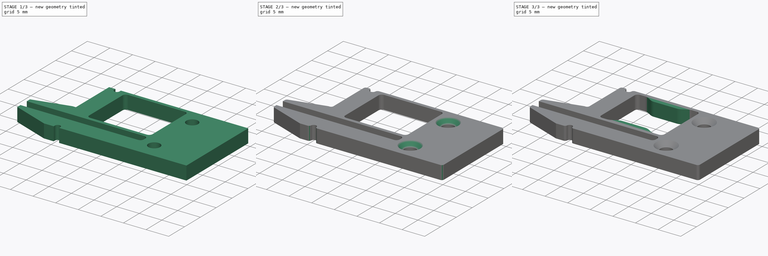
[diagram: build sequence overview — one tinted view per stage of 3, left to right]
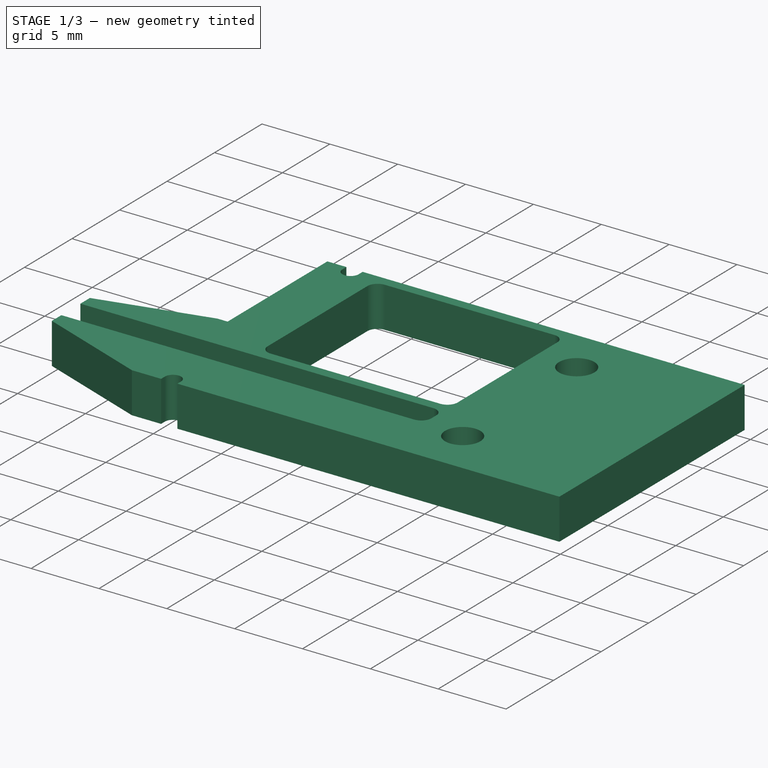
[diagram: stage 1 of 3 — iso view after this stage's code; geometry added in this stage tinted green]
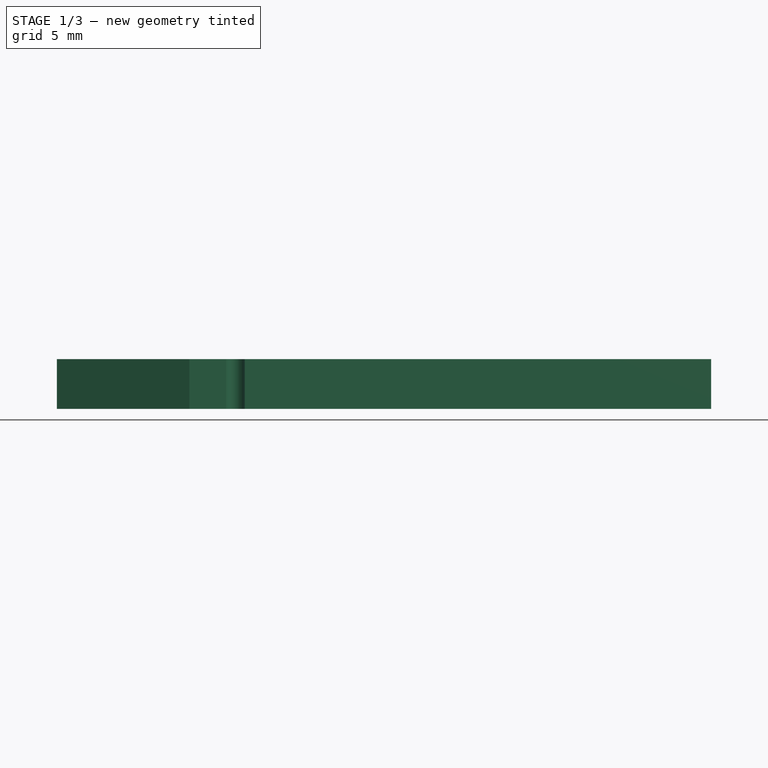
[diagram: stage 1 of 3 — front view after this stage's code; geometry added in this stage tinted green]
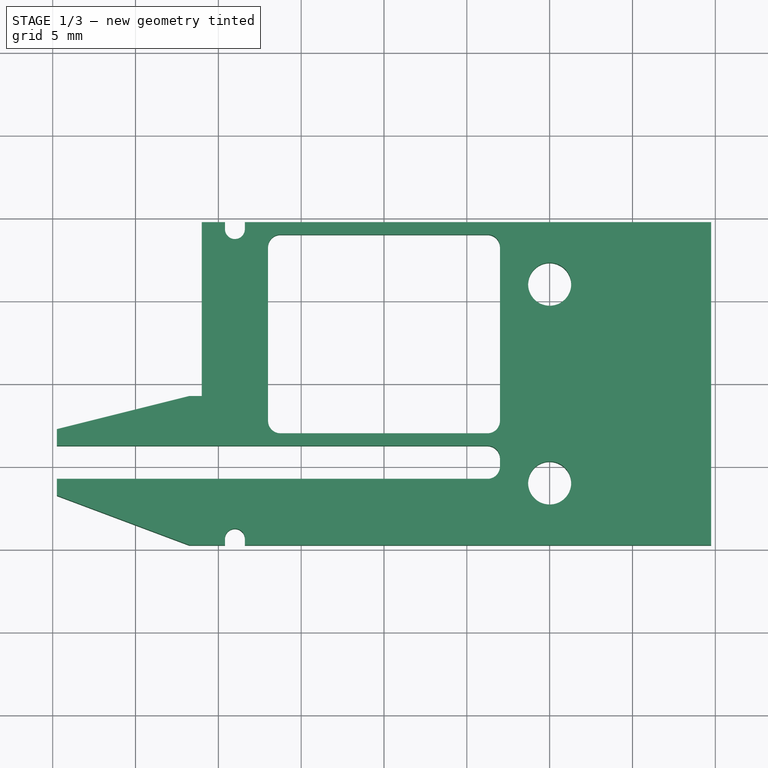
[diagram: stage 1 of 3 — top view after this stage's code; geometry added in this stage tinted green]
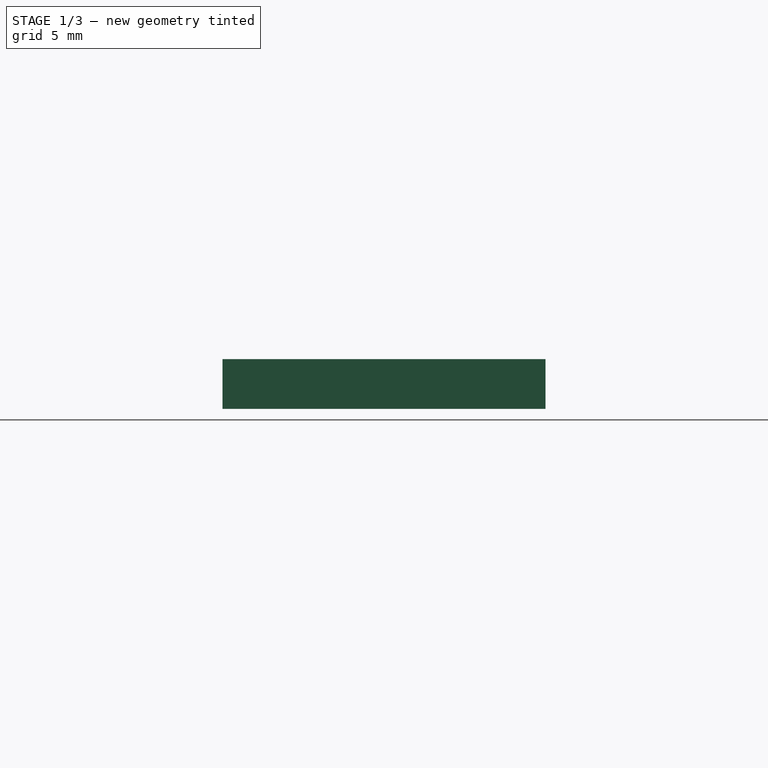
[diagram: stage 1 of 3 — right view after this stage's code; geometry added in this stage tinted green]
FCSTD DOCUMENT  (FreeCAD 1.1R41365 (Git))
Label: Gripper1
License: All rights reserved
LicenseURL: https://en.wikipedia.org/wiki/All_rights_reserved
objects: Sketcher::SketchObject×4, PartDesign::Pad×3, PartDesign::Fillet×3, App::Point×1, PartDesign::Pocket×1, PartDesign::Chamfer×1, PartDesign::Body×1
note: 33 computed .brp shape members not serialized (recipe doc carries the construction recipe); baked Part::Feature solids carry a one-line shape summary decoded from their .brp

FEATURE [App::Point] Origin001
  Role = Origin
FEATURE [Sketcher::SketchObject] Sketch
  ArcFitTolerance = 1e-06
  AttachmentSupport = -> [Origin]
  ExternalTypes = [0]
  FullyConstrained = true
  MakeInternals = false
  MapMode = 5
  sketch-geometry (22):
    g0: LineSegment StartX=-9.75 StartY=-9.75 StartZ=0 EndX=9.75 EndY=-9.75 EndZ=0
    g1: LineSegment StartX=9.75 StartY=-9.75 StartZ=0 EndX=9.75 EndY=9.75 EndZ=0
    g2: LineSegment StartX=9.75 StartY=9.75 StartZ=0 EndX=-9.75 EndY=9.75 EndZ=0
    g3: LineSegment [constr] StartX=-9.75 StartY=9.75 StartZ=0 EndX=-9.75 EndY=-9.75 EndZ=0
    g4: GeomPoint [constr] X=0 Y=0 Z=0
    g5: Circle CenterX=0 CenterY=6 CenterZ=0 NormalX=0 NormalY=0 NormalZ=1 AngleXU=0 Radius=1.3
    g6: Circle CenterX=0 CenterY=-6 CenterZ=0 NormalX=0 NormalY=0 NormalZ=1 AngleXU=0 Radius=1.3
    g7: LineSegment StartX=-9.75 StartY=-9.75 StartZ=0 EndX=-21.75 EndY=-9.75 EndZ=0
    g8: LineSegment StartX=-21.75 StartY=-9.75 StartZ=0 EndX=-29.75 EndY=-6.75 EndZ=0
    g9: LineSegment StartX=-29.75 StartY=-6.75 StartZ=0 EndX=-29.75 EndY=-5.75 EndZ=0
    g10: LineSegment StartX=-29.75 StartY=-5.75 StartZ=0 EndX=-3 EndY=-5.75 EndZ=0
    g11: LineSegment StartX=-29.75 StartY=-3.75 StartZ=0 EndX=-29.75 EndY=-2.75 EndZ=0
    g12: LineSegment StartX=-29.75 StartY=-2.75 StartZ=0 EndX=-21.75 EndY=-0.75 EndZ=0
    g13: LineSegment StartX=-29.75 StartY=-3.75 StartZ=0 EndX=-3 EndY=-3.75 EndZ=0
    g14: LineSegment StartX=-21.75 StartY=-0.75 StartZ=0 EndX=-21 EndY=-0.75 EndZ=0
    g15: LineSegment StartX=-21 StartY=-0.75 StartZ=0 EndX=-21 EndY=9.75 EndZ=0
    g16: LineSegment StartX=-21 StartY=9.75 StartZ=0 EndX=-9.75 EndY=9.75 EndZ=0
    g17: LineSegment StartX=-3 StartY=-3.75 StartZ=0 EndX=-3 EndY=-5.75 EndZ=0
    g18: LineSegment StartX=-17 StartY=9 StartZ=0 EndX=-17 EndY=-3 EndZ=0
    g19: LineSegment StartX=-17 StartY=-3 StartZ=0 EndX=-3 EndY=-3 EndZ=0
    g20: LineSegment StartX=-3 StartY=-3 StartZ=0 EndX=-3 EndY=9 EndZ=0
    g21: LineSegment StartX=-3 StartY=9 StartZ=0 EndX=-17 EndY=9 EndZ=0
  constraints (62):
    c: Coincident(g0,g1)
    c: Coincident(g1,g2)
    c: Coincident(g2,g3)
    c: Coincident(g3,g0)
    c: Horizontal(g0)
    c: Horizontal(g2)
    c: Vertical(g1)
    c: Vertical(g3)
    c: Symmetric(g2,g0,g4)
    c: Distance(g1,g3) = 19.5
    c: Coincident(g4,g-1)
    c: Equal(g2,g1)
    c: PointOnObject(g5,g-2)
    c: PointOnObject(g6,g-2)
    c: Equal(g6,g5)
    c: Diameter(g5) = 2.6
    c: DistanceY(g-1,g5) = 6
    c: DistanceY(g6,g-1) = 6
    c: Coincident(g7,g0)
    c: Horizontal(g7)
    c: Coincident(g8,g7)
    c: Coincident(g9,g8)
    c: Vertical(g9)
    c: Horizontal(g10)
    c: Coincident(g9,g10)
    c: DistanceY(g9,g9) = 1
    c: DistanceX(g8,g7) = 8
    c: Vertical(g11)
    c: Coincident(g12,g11)
    c: Coincident(g13,g11)
    c: Horizontal(g13)
    c: Coincident(g14,g12)
    c: Horizontal(g14)
    c: Coincident(g15,g14)
    c: Vertical(g15)
    c: Coincident(g16,g15)
    c: Coincident(g16,g2)
    c: Horizontal(g16)
    c: Vertical(g12,g7)
    c: Coincident(g17,g13)
    c: Coincident(g17,g10)
    c: Vertical(g17)
    c: Distance(g7,g10) = 4
    c: Distance(g17,g17) = 2
    c: Equal(g11,g9)
    c: Vertical(g9,g11)
    c: DistanceX(g9,g0) = 20
    c: Coincident(g18,g19)
    c: Coincident(g19,g20)
    c: Coincident(g20,g21)
    c: Coincident(g21,g18)
    c: Vertical(g18)
    c: Vertical(g20)
    c: Horizontal(g19)
    c: Horizontal(g21)
    c: Vertical(g19,g13)
    c: Distance(g16,g21) = 0.75
    c: Distance(g18,g15) = 4
    c: Distance(g13,g19) = 0.75
    c: Distance(g-2,g20) = 3
    c: DistanceX(g15,g-1) = 21
    c: Distance(g13,g14) = 3
FEATURE [PartDesign::Pad] Pad
  Direction = (0,0,1)
  Length = 3
  Length2 = 10
  Profile = -> Sketch
  ReferenceAxis = -> Sketch [N_Axis]
  Refine = true
  Suppressed = false
  Type = 0
FEATURE [PartDesign::Fillet] Fillet
  Base = -> Pad [Edge44,Edge46,Edge41,Edge42,Edge31,Edge33]
  BaseFeature = -> Pad
  Radius = 0.75
  Refine = true
  SupportTransform = false
  Suppressed = false
  UseAllEdges = false
FEATURE [Sketcher::SketchObject] Sketch002
  ArcFitTolerance = 1e-06
  AttachmentSupport = -> [Fillet]
  ExternalTypes = [0]
  FullyConstrained = false
  MakeInternals = false
  MapMode = 5
  Placement = pos=(0,0,3) rot=(0,0,1;0rad)
  sketch-geometry (8):
    g0: ArcOfCircle CenterX=-19 CenterY=-9.35383 CenterZ=0 NormalX=0 NormalY=0 NormalZ=1 AngleXU=0 Radius=0.6 StartAngle=7e-16 EndAngle=3.14159
    g1: ArcOfCircle CenterX=-19 CenterY=-11.1037 CenterZ=0 NormalX=0 NormalY=0 NormalZ=1 AngleXU=0 Radius=0.6 StartAngle=3.14159 EndAngle=6.28319
    g2: LineSegment StartX=-18.4 StartY=-9.35383 StartZ=0 EndX=-18.4 EndY=-11.1037 EndZ=0
    g3: LineSegment StartX=-19.6 StartY=-9.35383 StartZ=0 EndX=-19.6 EndY=-11.1037 EndZ=0
    g4: ArcOfCircle CenterX=-19 CenterY=12.3825 CenterZ=0 NormalX=0 NormalY=0 NormalZ=1 AngleXU=0 Radius=0.6 StartAngle=-9e-16 EndAngle=3.14159
    g5: ArcOfCircle CenterX=-19 CenterY=9.32697 CenterZ=0 NormalX=0 NormalY=0 NormalZ=1 AngleXU=0 Radius=0.6 StartAngle=3.14159 EndAngle=6.28319
    g6: LineSegment StartX=-18.4 StartY=12.3825 StartZ=0 EndX=-18.4 EndY=9.32697 EndZ=0
    g7: LineSegment StartX=-19.6 StartY=12.3825 StartZ=0 EndX=-19.6 EndY=9.32697 EndZ=0
  constraints (16):
    c: Tangent(g0,g2) = 1.5708
    c: Tangent(g0,g3) = -1.5708
    c: Tangent(g1,g2) = 1.5708
    c: Tangent(g1,g3) = -1.5708
    c: Equal(g0,g1)
    c: Vertical(g3)
    c: Radius(g0) = 0.6
    c: Tangent(g4,g6) = 1.5708
    c: Tangent(g4,g7) = -1.5708
    c: Tangent(g5,g6) = 1.5708
    c: Tangent(g5,g7) = -1.5708
    c: Equal(g4,g5)
    c: Vertical(g7)
    c: Radius(g4) = 0.6
    c: Vertical(g0,g5)
    c: DistanceX(g5,g-1) = 19
FEATURE [PartDesign::Pocket] Pocket
  BaseFeature = -> Fillet
  Direction = (0,0,-1)
  Length = 5
  Length2 = 5
  Profile = -> Sketch002
  ReferenceAxis = -> Sketch002 [N_Axis]
  Refine = true
  Suppressed = false
  Type = 0
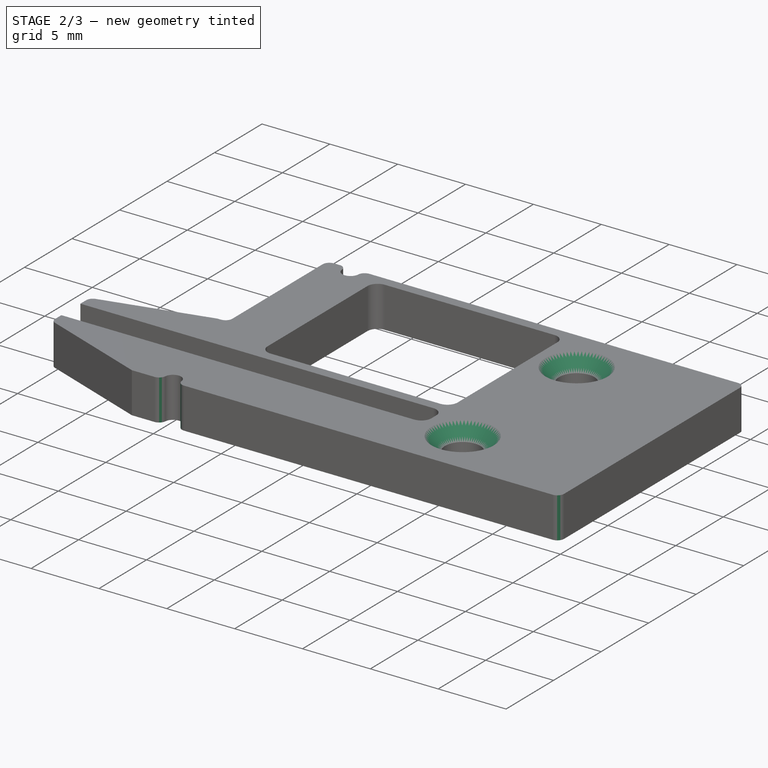
[diagram: stage 2 of 3 — iso view after this stage's code; geometry added in this stage tinted green]
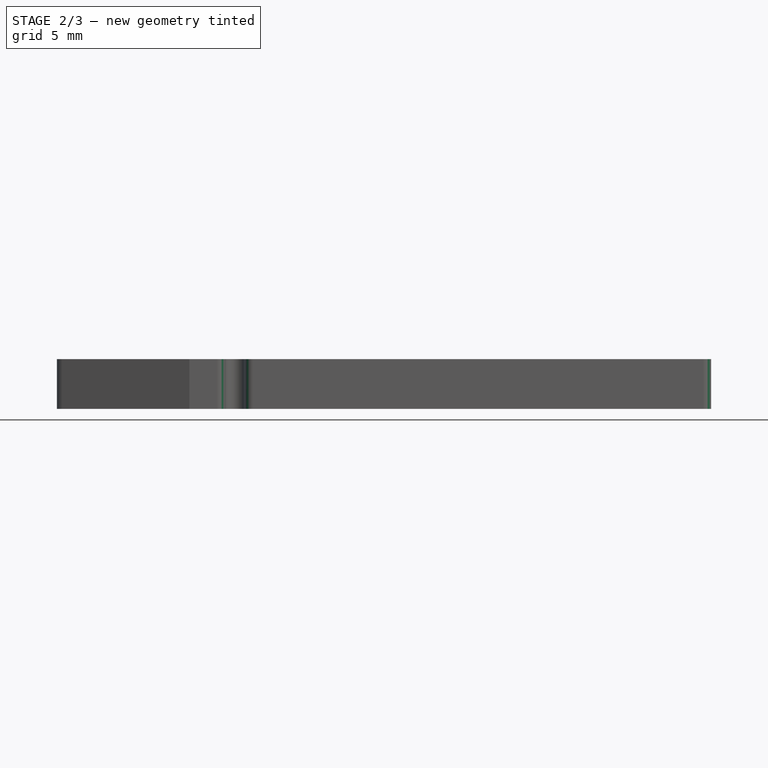
[diagram: stage 2 of 3 — front view after this stage's code; geometry added in this stage tinted green]
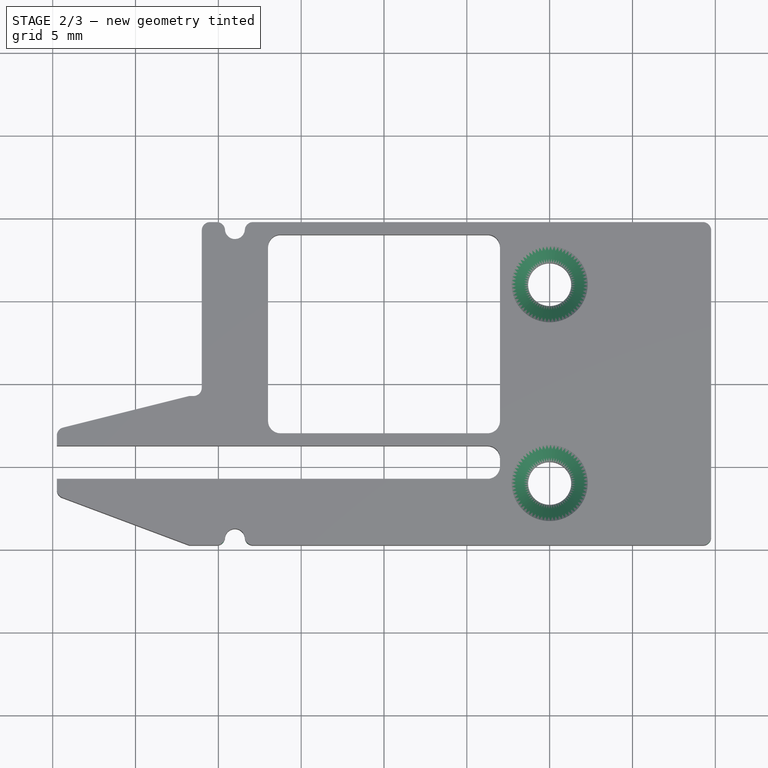
[diagram: stage 2 of 3 — top view after this stage's code; geometry added in this stage tinted green]
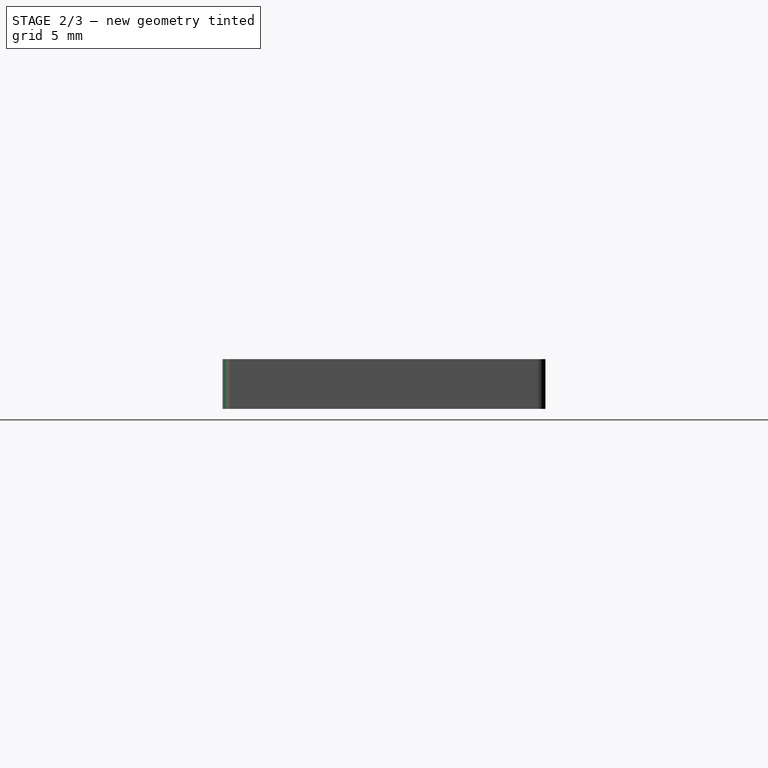
[diagram: stage 2 of 3 — right view after this stage's code; geometry added in this stage tinted green]
FEATURE [PartDesign::Fillet] Fillet001
  Base = -> Pocket [Edge42,Edge40,Edge54,Edge52,Edge44,Edge51,Edge63,Edge56,Edge66,Edge36]
  BaseFeature = -> Pocket
  Radius = 0.5
  Refine = true
  SupportTransform = false
  Suppressed = false
  UseAllEdges = false
FEATURE [PartDesign::Chamfer] Chamfer
  Angle = 45
  Base = -> Fillet001 [Edge114,Edge96]
  BaseFeature = -> Fillet001
  ChamferType = 0
  FlipDirection = false
  Refine = true
  Size = 1
  Size2 = 1
  SupportTransform = false
  Suppressed = false
  UseAllEdges = false
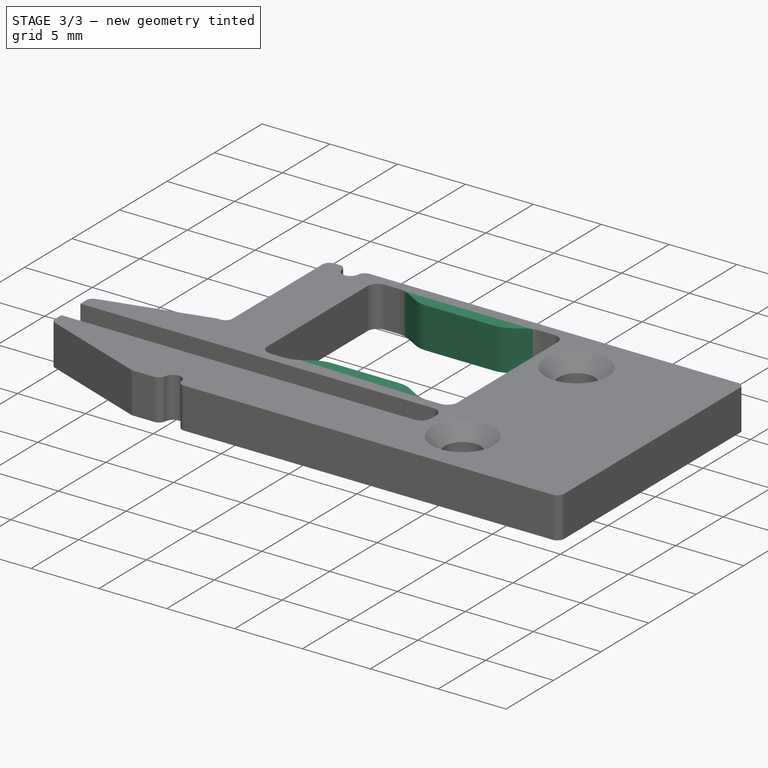
[diagram: stage 3 of 3 — iso view after this stage's code; geometry added in this stage tinted green]
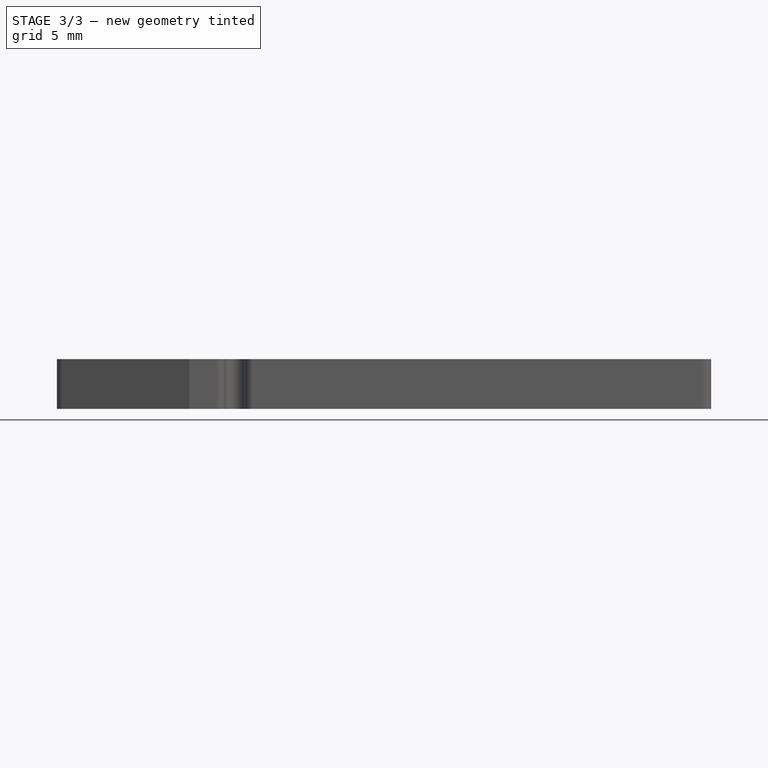
[diagram: stage 3 of 3 — front view after this stage's code; geometry added in this stage tinted green]
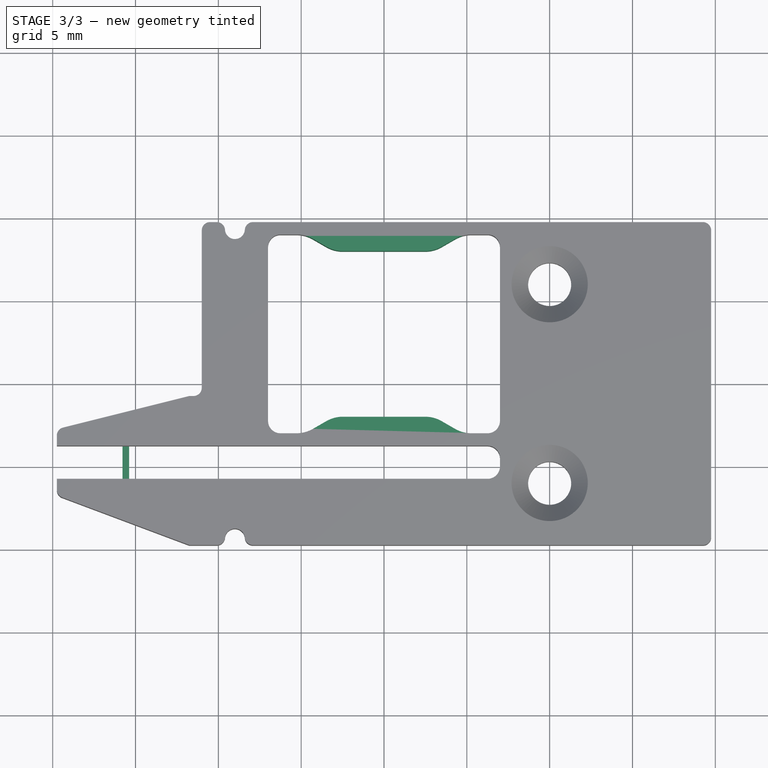
[diagram: stage 3 of 3 — top view after this stage's code; geometry added in this stage tinted green]
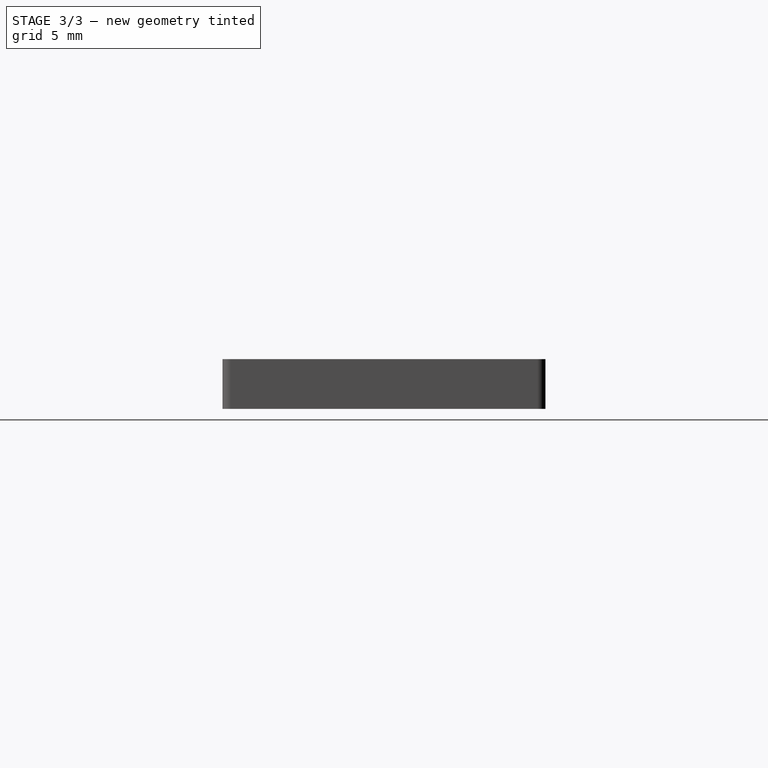
[diagram: stage 3 of 3 — right view after this stage's code; geometry added in this stage tinted green]
FEATURE [Sketcher::SketchObject] Sketch003
  ArcFitTolerance = 1e-06
  AttachmentSupport = -> [Chamfer]
  ExternalGeometry = -> [Chamfer]
  ExternalTypes = [0,0]
  FullyConstrained = true
  MakeInternals = false
  MapMode = 5
  Placement = pos=(0,0,3) rot=(0,0,1;0rad)
  sketch-geometry (8):
    g0: LineSegment StartX=-14.75 StartY=9 StartZ=0 EndX=-13.0179 EndY=8 EndZ=0
    g1: LineSegment StartX=-13.0179 StartY=8 StartZ=0 EndX=-6.98205 EndY=8 EndZ=0
    g2: LineSegment StartX=-6.98205 StartY=8 StartZ=0 EndX=-5.25 EndY=9 EndZ=0
    g3: LineSegment StartX=-5.25 StartY=9 StartZ=0 EndX=-14.75 EndY=9 EndZ=0
    g4: LineSegment StartX=-14.75 StartY=-3 StartZ=0 EndX=-13.0179 EndY=-2 EndZ=0
    g5: LineSegment StartX=-13.0179 StartY=-2 StartZ=0 EndX=-6.98205 EndY=-2 EndZ=0
    g6: LineSegment StartX=-6.98205 StartY=-2 StartZ=0 EndX=-5.25 EndY=-3 EndZ=0
    g7: LineSegment StartX=-5.25 StartY=-3 StartZ=0 EndX=-14.75 EndY=-3 EndZ=0
  constraints (24):
    c: PointOnObject(g0,g-3)
    c: Coincident(g1,g0)
    c: Horizontal(g1)
    c: Coincident(g2,g1)
    c: PointOnObject(g2,g-3)
    c: Coincident(g3,g2)
    c: Coincident(g3,g0)
    c: DistanceX(g-3,g0) = 1.5
    c: DistanceX(g2,g-3) = 1.5
    c: Angle(g0,g3) = 0.523599
    c: Angle(g3,g2) = 0.523599
    c: Distance(g3,g1) = 1
    c: PointOnObject(g4,g-4)
    c: Coincident(g5,g4)
    c: Horizontal(g5)
    c: Coincident(g6,g5)
    c: PointOnObject(g6,g-4)
    c: Coincident(g7,g6)
    c: Coincident(g7,g4)
    c: Equal(g7,g3)
    c: Equal(g5,g1)
    c: Equal(g4,g0)
    c: Equal(g4,g6)
    c: Vertical(g4,g0)
FEATURE [PartDesign::Pad] Pad001
  BaseFeature = -> Chamfer
  Direction = (0,0,1)
  Length = 3
  Length2 = 10
  Profile = -> Sketch003
  ReferenceAxis = -> Sketch003 [N_Axis]
  Refine = true
  Reversed = true
  Suppressed = false
  Type = 0
FEATURE [PartDesign::Fillet] Fillet002
  Base = -> Pad001 [Edge120,Edge112,Edge130,Edge132,Edge125,Edge116,Edge114,Edge111]
  BaseFeature = -> Pad001
  Radius = 2
  Refine = true
  SupportTransform = false
  Suppressed = false
  UseAllEdges = false
FEATURE [Sketcher::SketchObject] Sketch004
  ArcFitTolerance = 1e-06
  AttachmentSupport = -> [Fillet002]
  ExternalTypes = [0]
  FullyConstrained = false
  MakeInternals = false
  MapMode = 5
  Placement = pos=(0,0,0) rot=(1,0,0;3.14159rad)
  sketch-geometry (4):
    g0: LineSegment StartX=-25.7838 StartY=5.9735 StartZ=0 EndX=-25.7838 EndY=3.24838 EndZ=0
    g1: LineSegment StartX=-25.7838 StartY=3.24838 StartZ=0 EndX=-25.3837 EndY=3.24838 EndZ=0
    g2: LineSegment StartX=-25.3837 StartY=3.24838 StartZ=0 EndX=-25.3837 EndY=5.9735 EndZ=0
    g3: LineSegment StartX=-25.3837 StartY=5.9735 StartZ=0 EndX=-25.7838 EndY=5.9735 EndZ=0
  constraints (8):
    c: Coincident(g0,g1)
    c: Coincident(g1,g2)
    c: Coincident(g2,g3)
    c: Coincident(g3,g0)
    c: Vertical(g0)
    c: Vertical(g2)
    c: Horizontal(g1)
    c: Horizontal(g3)
FEATURE [PartDesign::Pad] Pad002
  BaseFeature = -> Fillet002
  Direction = (0,0,-1)
  Length = 0.2
  Length2 = 10
  Profile = -> Sketch004
  ReferenceAxis = -> Sketch004 [N_Axis]
  Refine = true
  Reversed = true
  Suppressed = false
  Type = 0
FEATURE [PartDesign::Body] Body  label="Gripper1"
  AllowCompound = false
  Group = -> [Sketch,Pad,Fillet,Sketch002,Pocket,Fillet001,Chamfer,Sketch003,Pad001,Fillet002,Sketch004,Pad002]
  Origin = -> Origin
  Tip = -> Pad002
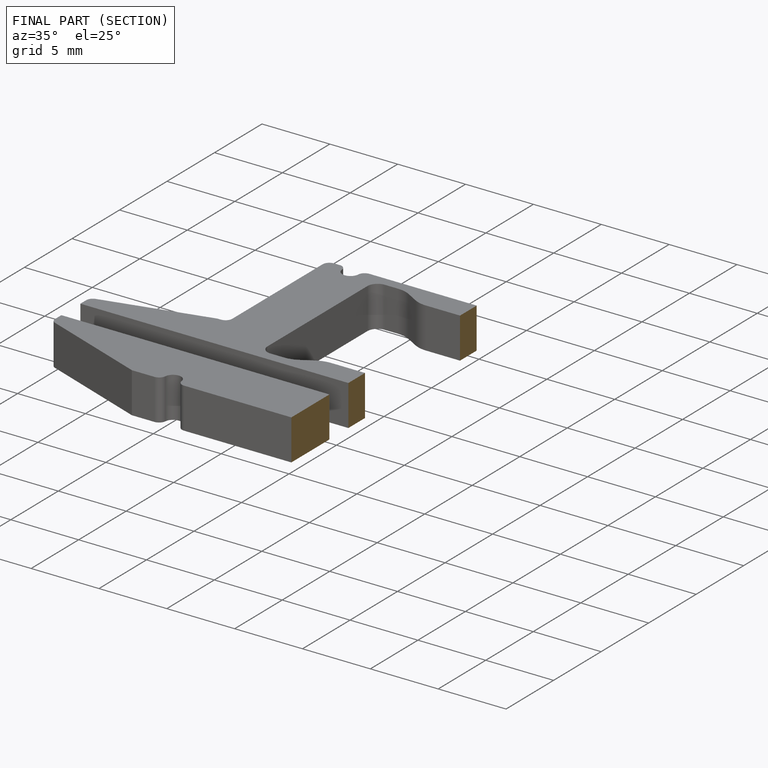
[diagram: finished part — half-section view (interior)]
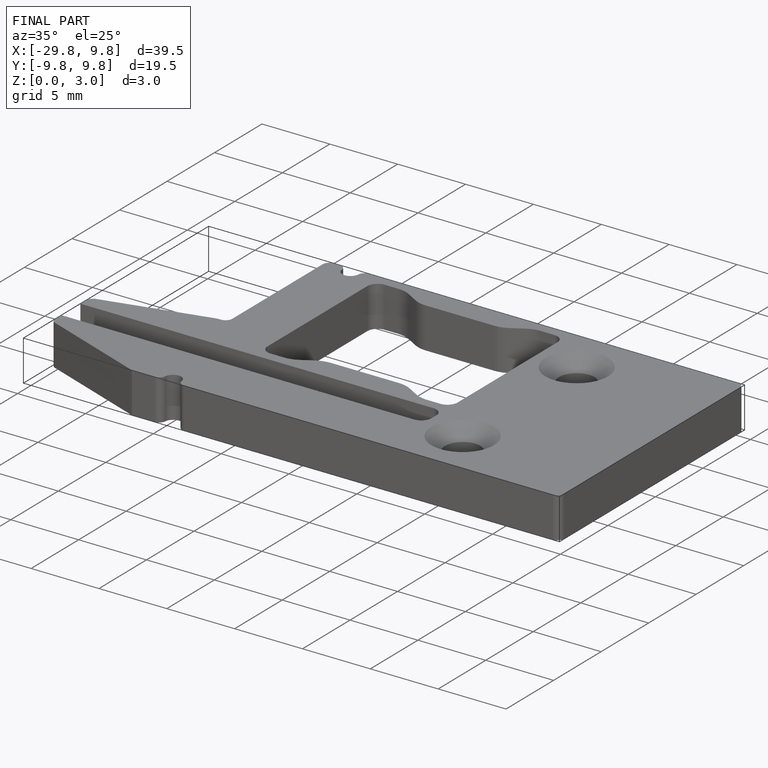
[diagram: finished part — iso view with bounding-box wireframe]
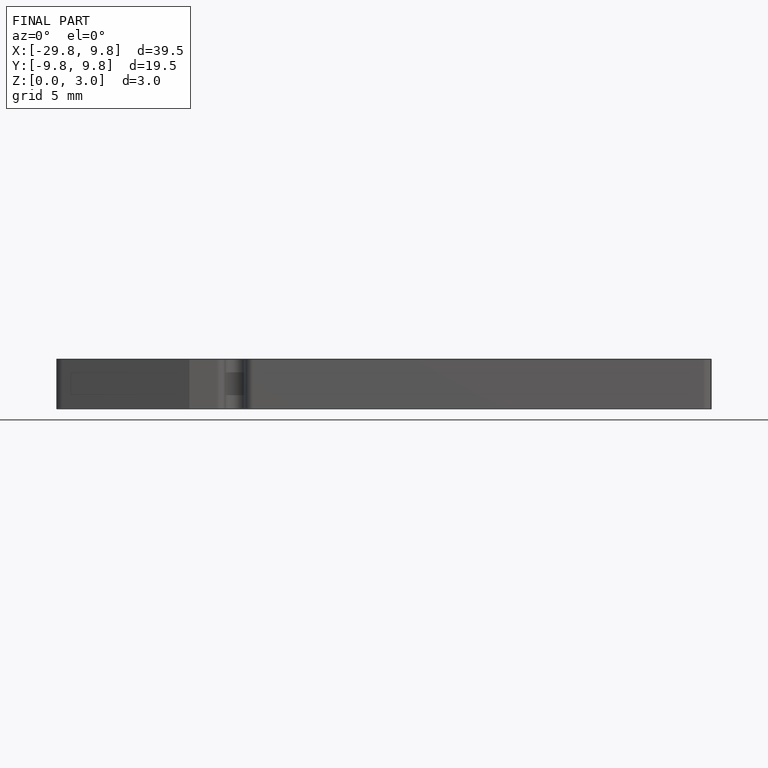
[diagram: finished part — front view with bounding-box wireframe]
